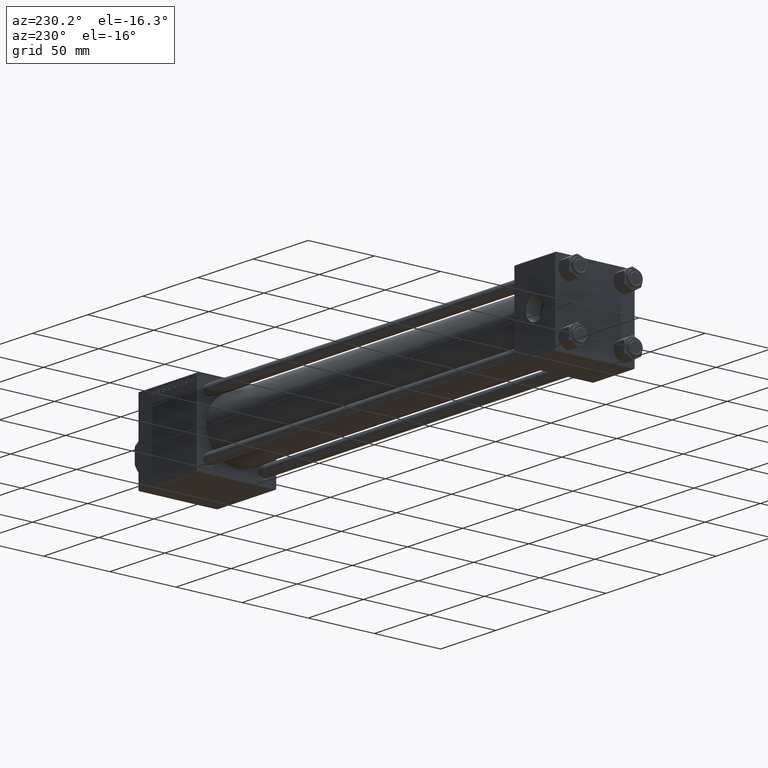
[diagram: clean part render]
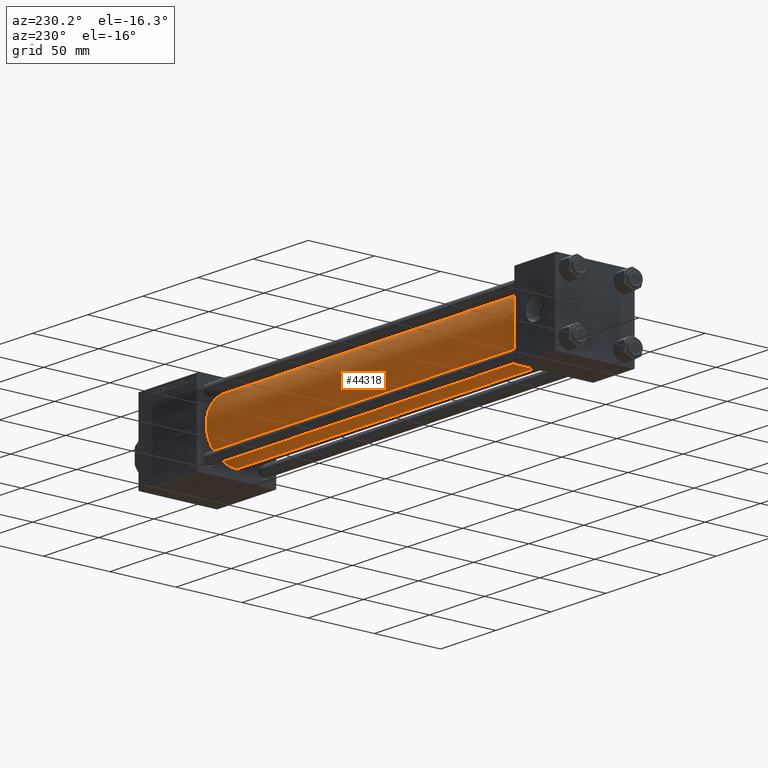
[diagram: same view with one face highlighted and labeled with its STEP entity id]
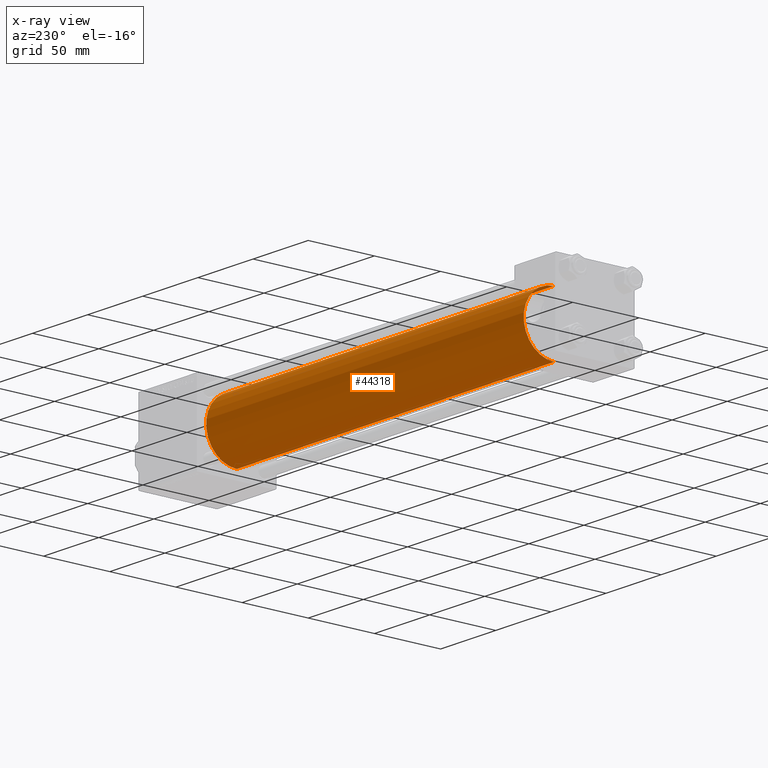
[diagram: x-ray of the same camera — body ghosted, the highlighted face saturated]
A machine part, auxiliary view. The second image highlights one B-rep face of the part: STEP entity #44318.
The next image is the same camera in x-ray: the body ghosted, the highlighted face saturated — about 0% of this face is hidden behind the body in this view.
In plain terms, the highlighted cylindrical surface (partial cylindrical patch) has radius 23 mm, axis along (-1, -0, -0).
Its self-contained STEP definition (entity closure, byte-faithful):
#282 = DIRECTION ( 'NONE',  ( 0.000000000000000000, 0.000000000000000000, 1.000000000000000000 ) ) ;
#1244 = DIRECTION ( 'NONE',  ( 0.000000000000000000, 0.000000000000000000, -1.000000000000000000 ) ) ;
#1635 = VERTEX_POINT ( 'NONE', #47979 ) ;
#2929 = EDGE_CURVE ( 'NONE', #7861, #1635, #15358, .T. ) ;
#3681 = FACE_OUTER_BOUND ( 'NONE', #20970, .T. ) ;
#4471 = CARTESIAN_POINT ( 'NONE',  ( 36.99999999999997868, -2.602085213965210642E-15, 0.000000000000000000 ) ) ;
#4999 = AXIS2_PLACEMENT_3D ( 'NONE', #5973, #29591, #1244 ) ;
#5973 = CARTESIAN_POINT ( 'NONE',  ( 324.9999999999999432, -2.602085213965210642E-15, 0.000000000000000000 ) ) ;
#7861 = VERTEX_POINT ( 'NONE', #38107 ) ;
#12754 = DIRECTION ( 'NONE',  ( -1.000000000000000000, -0.000000000000000000, -0.000000000000000000 ) ) ;
#15358 = CIRCLE ( 'NONE', #48058, 23.00000000000000000 ) ;
#15592 = VECTOR ( 'NONE', #12754, 1000.000000000000000 ) ;
#18645 = ORIENTED_EDGE ( 'NONE', *, *, #50142, .T. ) ;
#19694 = CYLINDRICAL_SURFACE ( 'NONE', #47675, 23.00000000000000000 ) ;
#20110 = CIRCLE ( 'NONE', #4999, 23.00000000000000000 ) ;
#20970 = EDGE_LOOP ( 'NONE', ( #44259, #18645, #35619, #32198 ) ) ;
#23217 = EDGE_CURVE ( 'NONE', #51379, #37161, #20110, .T. ) ;
#26085 = VECTOR ( 'NONE', #34923, 1000.000000000000000 ) ;
#28597 = DIRECTION ( 'NONE',  ( -1.000000000000000000, -0.000000000000000000, -0.000000000000000000 ) ) ;
#29591 = DIRECTION ( 'NONE',  ( 1.000000000000000000, 0.000000000000000000, 0.000000000000000000 ) ) ;
#30987 = CARTESIAN_POINT ( 'NONE',  ( 324.9999999999999432, 2.146024240737016609E-16, -23.00000000000000000 ) ) ;
#32017 = CARTESIAN_POINT ( 'NONE',  ( 324.9999999999999432, 2.146024240737016609E-16, -23.00000000000000000 ) ) ;
#32198 = ORIENTED_EDGE ( 'NONE', *, *, #38738, .F. ) ;
#34923 = DIRECTION ( 'NONE',  ( -1.000000000000000000, -0.000000000000000000, -0.000000000000000000 ) ) ;
#35559 = CARTESIAN_POINT ( 'NONE',  ( 324.9999999999999432, -2.602085213965210642E-15, 23.00000000000000000 ) ) ;
#35619 = ORIENTED_EDGE ( 'NONE', *, *, #2929, .T. ) ;
#37161 = VERTEX_POINT ( 'NONE', #35559 ) ;
#37917 = LINE ( 'NONE', #45526, #15592 ) ;
#38107 = CARTESIAN_POINT ( 'NONE',  ( 36.99999999999997868, 2.146024240737016609E-16, -23.00000000000000000 ) ) ;
#38738 = EDGE_CURVE ( 'NONE', #37161, #1635, #37917, .T. ) ;
#39121 = LINE ( 'NONE', #32017, #26085 ) ;
#44259 = ORIENTED_EDGE ( 'NONE', *, *, #23217, .F. ) ;
#44318 = ADVANCED_FACE ( 'NONE', ( #3681 ), #19694, .T. ) ;
#45526 = CARTESIAN_POINT ( 'NONE',  ( 324.9999999999999432, -2.602085213965210642E-15, 23.00000000000000000 ) ) ;
#47675 = AXIS2_PLACEMENT_3D ( 'NONE', #48547, #28597, #51723 ) ;
#47979 = CARTESIAN_POINT ( 'NONE',  ( 36.99999999999997868, -2.602085213965210642E-15, 23.00000000000000000 ) ) ;
#48055 = DIRECTION ( 'NONE',  ( 1.000000000000000000, -0.000000000000000000, 0.000000000000000000 ) ) ;
#48058 = AXIS2_PLACEMENT_3D ( 'NONE', #4471, #48055, #282 ) ;
#48547 = CARTESIAN_POINT ( 'NONE',  ( 324.9999999999999432, -2.602085213965210642E-15, 0.000000000000000000 ) ) ;
#50142 = EDGE_CURVE ( 'NONE', #51379, #7861, #39121, .T. ) ;
#51379 = VERTEX_POINT ( 'NONE', #30987 ) ;
#51723 = DIRECTION ( 'NONE',  ( 0.000000000000000000, 0.000000000000000000, 1.000000000000000000 ) ) ;